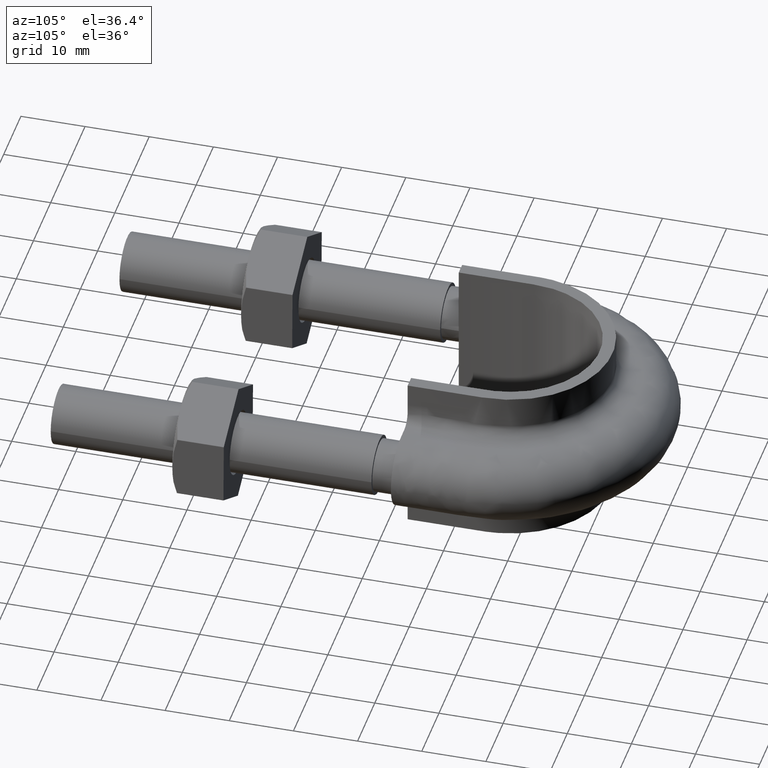
[diagram: clean part render]
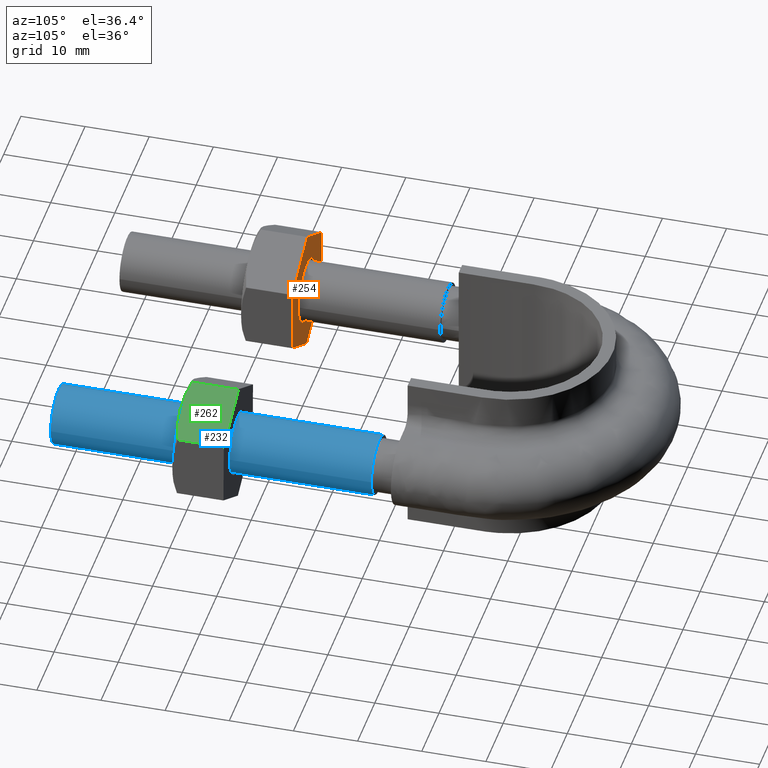
[diagram: same view with three faces highlighted in distinct colors, each labeled with its STEP entity id]
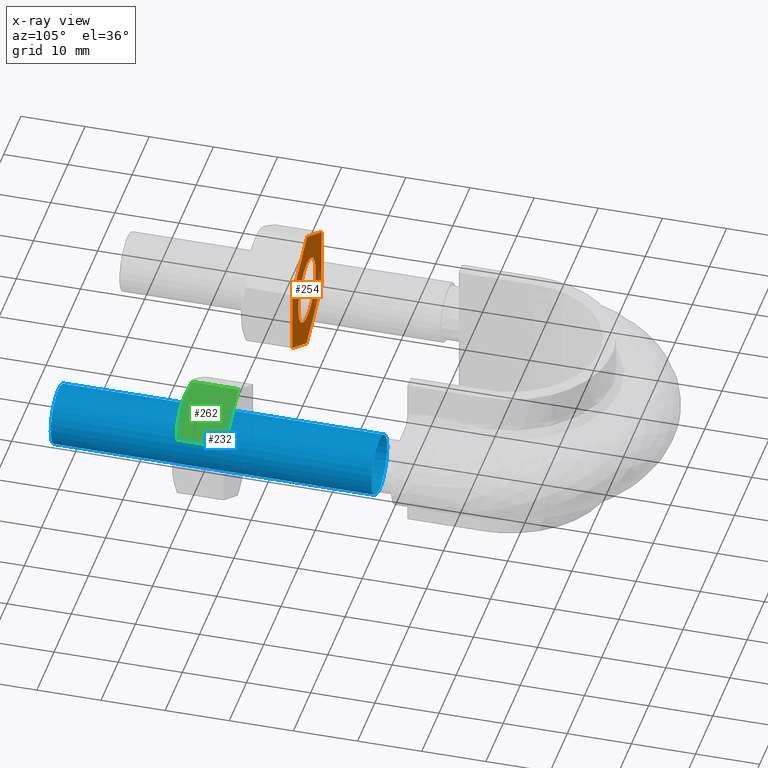
[diagram: x-ray of the same camera — body ghosted, the three highlighted faces saturated]
A machine part, auxiliary view with three faces highlighted in distinct colors.
The next image is the same camera in x-ray (body ghosted, the three faces saturated) — at least one of them is partly hidden behind the body in this view.
Their STEP definitions:

[orange] entity #254 — the highlighted planar face has unit normal (-0, -1, -0).
#254 = ADVANCED_FACE( '', ( #360, #361 ), #362, .F. );
#360 = FACE_OUTER_BOUND( '', #1218, .T. );
#361 = FACE_BOUND( '', #1219, .T. );
#362 = PLANE( '', #1220 );
#1218 = EDGE_LOOP( '', ( #1531, #1532, #1533, #1534, #1535, #1536, #1537, #1538, #1539, #1540, #1541, #1542 ) );
#1219 = EDGE_LOOP( '', ( #1543 ) );
#1220 = AXIS2_PLACEMENT_3D( '', #1544, #1545, #1546 );
#1531 = ORIENTED_EDGE( '', *, *, #1794, .T. );
#1532 = ORIENTED_EDGE( '', *, *, #1787, .T. );
#1533 = ORIENTED_EDGE( '', *, *, #1781, .T. );
#1534 = ORIENTED_EDGE( '', *, *, #1761, .T. );
#1535 = ORIENTED_EDGE( '', *, *, #1804, .T. );
#1536 = ORIENTED_EDGE( '', *, *, #1800, .T. );
#1537 = ORIENTED_EDGE( '', *, *, #1791, .T. );
#1538 = ORIENTED_EDGE( '', *, *, #1796, .T. );
#1539 = ORIENTED_EDGE( '', *, *, #1771, .T. );
#1540 = ORIENTED_EDGE( '', *, *, #1766, .T. );
#1541 = ORIENTED_EDGE( '', *, *, #1785, .T. );
#1542 = ORIENTED_EDGE( '', *, *, #1776, .T. );
#1543 = ORIENTED_EDGE( '', *, *, #1793, .F. );
#1544 = CARTESIAN_POINT( '', ( -20.1994470847724, 28.0000000000024, 9.79797024186009 ) );
#1545 = DIRECTION( '', ( -4.89842541528951E-016, -1.00000000000000, -6.12303176911189E-017 ) );
#1546 = DIRECTION( '', ( -1.00000000000000, 4.89842541528951E-016, 6.03777548009827E-048 ) );
#1761 = EDGE_CURVE( '', #1907, #1905, #1908, .T. );
#1766 = EDGE_CURVE( '', #1917, #1915, #1918, .T. );
#1771 = EDGE_CURVE( '', #1925, #1917, #1926, .F. );
#1776 = EDGE_CURVE( '', #1935, #1933, #1936, .T. );
#1781 = EDGE_CURVE( '', #1942, #1907, #1943, .F. );
#1785 = EDGE_CURVE( '', #1915, #1935, #1949, .F. );
#1787 = EDGE_CURVE( '', #1951, #1942, #1952, .T. );
#1791 = EDGE_CURVE( '', #1959, #1957, #1960, .F. );
#1793 = EDGE_CURVE( '', #1962, #1962, #1963, .F. );
#1794 = EDGE_CURVE( '', #1933, #1951, #1964, .F. );
#1796 = EDGE_CURVE( '', #1957, #1925, #1966, .T. );
#1800 = EDGE_CURVE( '', #1972, #1959, #1973, .T. );
#1804 = EDGE_CURVE( '', #1905, #1972, #1977, .F. );
#1905 = VERTEX_POINT( '', #2298 );
#1907 = VERTEX_POINT( '', #2301 );
#1908 = LINE( '', #2302, #2303 );
#1915 = VERTEX_POINT( '', #2321 );
#1917 = VERTEX_POINT( '', #2324 );
#1918 = LINE( '', #2325, #2326 );
#1925 = VERTEX_POINT( '', #2339 );
#1926 = CIRCLE( '', #2340, 9.80000000000000 );
#1933 = VERTEX_POINT( '', #2358 );
#1935 = VERTEX_POINT( '', #2361 );
#1936 = LINE( '', #2362, #2363 );
#1942 = VERTEX_POINT( '', #2375 );
#1943 = CIRCLE( '', #2376, 9.80000000000000 );
#1949 = CIRCLE( '', #2383, 9.80000000000000 );
#1951 = VERTEX_POINT( '', #2385 );
#1952 = LINE( '', #2386, #2387 );
#1957 = VERTEX_POINT( '', #2393 );
#1959 = VERTEX_POINT( '', #2396 );
#1960 = CIRCLE( '', #2397, 9.80000000000000 );
#1962 = VERTEX_POINT( '', #2400 );
#1963 = CIRCLE( '', #2401, 5.00000000000000 );
#1964 = CIRCLE( '', #2402, 9.80000000000000 );
#1966 = LINE( '', #2409, #2410 );
#1972 = VERTEX_POINT( '', #2426 );
#1973 = LINE( '', #2427, #2428 );
#1977 = CIRCLE( '', #2433, 9.80000000000000 );
#2298 = CARTESIAN_POINT( '', ( -19.7745973443148, 28.0000000000024, -9.79740749600679 ) );
#2301 = CARTESIAN_POINT( '', ( -11.4275360054900, 28.0000000000024, -4.74898526664692 ) );
#2302 = CARTESIAN_POINT( '', ( -11.4082828786081, 28.0000000000024, -4.73734069980000 ) );
#2303 = VECTOR( '', #2626, 1000.00000000000 );
#2321 = CARTESIAN_POINT( '', ( -20.2254026556852, 28.0000000000024, 9.79740749600680 ) );
#2324 = CARTESIAN_POINT( '', ( -28.5724639945100, 28.0000000000024, 4.74898526664693 ) );
#2325 = CARTESIAN_POINT( '', ( -20.2061495288033, 28.0000000000024, 9.80905206285371 ) );
#2326 = VECTOR( '', #2629, 1000.00000000000 );
#2339 = CARTESIAN_POINT( '', ( -28.5975051106125, 28.0000000000024, 4.70349932209962 ) );
#2340 = AXIS2_PLACEMENT_3D( '', #2637, #2638, #2639 );
#2358 = CARTESIAN_POINT( '', ( -11.6278975450726, 28.0000000000024, 5.09390817390726 ) );
#2361 = CARTESIAN_POINT( '', ( -20.1734901141408, 28.0000000000024, 9.79846422559656 ) );
#2362 = CARTESIAN_POINT( '', ( -20.1932011682872, 28.0000000000024, 9.80931563915510 ) );
#2363 = VECTOR( '', #2642, 1000.00000000000 );
#2375 = CARTESIAN_POINT( '', ( -11.4024948893875, 28.0000000000024, -4.70349932209962 ) );
#2376 = AXIS2_PLACEMENT_3D( '', #2650, #2651, #2652 );
#2383 = AXIS2_PLACEMENT_3D( '', #2660, #2661, #2662 );
#2385 = CARTESIAN_POINT( '', ( -11.6010261196308, 28.0000000000024, 5.04947895894972 ) );
#2386 = CARTESIAN_POINT( '', ( -11.7012075892815, 28.0000000000024, 9.97096006028513 ) );
#2387 = VECTOR( '', #2666, 1000.00000000000 );
#2393 = CARTESIAN_POINT( '', ( -28.3989738803692, 28.0000000000024, -5.04947895894971 ) );
#2396 = CARTESIAN_POINT( '', ( -28.3721024549274, 28.0000000000024, -5.09390817390725 ) );
#2397 = AXIS2_PLACEMENT_3D( '', #2672, #2673, #2674 );
#2400 = CARTESIAN_POINT( '', ( -15.0000000000000, 28.0000000000024, 5.01541082970070E-015 ) );
#2401 = AXIS2_PLACEMENT_3D( '', #2676, #2677, #2678 );
#2402 = AXIS2_PLACEMENT_3D( '', #2679, #2680, #2681 );
#2409 = CARTESIAN_POINT( '', ( -28.6976865802633, 28.0000000000024, 9.62498042343504 ) );
#2410 = VECTOR( '', #2682, 1000.00000000000 );
#2426 = CARTESIAN_POINT( '', ( -19.8265098858592, 28.0000000000024, -9.79846422559655 ) );
#2427 = CARTESIAN_POINT( '', ( -28.3918135090738, 28.0000000000024, -5.08305676034871 ) );
#2428 = VECTOR( '', #2686, 1000.00000000000 );
#2433 = AXIS2_PLACEMENT_3D( '', #2694, #2695, #2696 );
#2626 = DIRECTION( '', ( -0.855670162509040, 4.50831657113657E-016, -0.517521567658540 ) );
#2629 = DIRECTION( '', ( 0.855670162509040, -4.50831657113657E-016, 0.517521567658540 ) );
#2637 = CARTESIAN_POINT( '', ( -20.0000000000000, 28.0000000000024, 5.01541082970070E-015 ) );
#2638 = DIRECTION( '', ( -4.89842541528951E-016, -1.00000000000000, -6.12303176911189E-017 ) );
#2639 = DIRECTION( '', ( 1.00000000000000, -4.89842541528951E-016, 0.000000000000000 ) );
#2642 = DIRECTION( '', ( 0.876021905853163, -3.99583171018579E-016, -0.482271314163917 ) );
#2650 = CARTESIAN_POINT( '', ( -20.0000000000000, 28.0000000000024, 5.01541082970070E-015 ) );
#2651 = DIRECTION( '', ( -4.89842541528951E-016, -1.00000000000000, -6.12303176911189E-017 ) );
#2652 = DIRECTION( '', ( 1.00000000000000, -4.89842541528951E-016, 0.000000000000000 ) );
#2660 = CARTESIAN_POINT( '', ( -20.0000000000000, 28.0000000000024, 5.01541082970070E-015 ) );
#2661 = DIRECTION( '', ( -4.89842541528951E-016, -1.00000000000000, -6.12303176911189E-017 ) );
#2662 = DIRECTION( '', ( 1.00000000000000, -4.89842541528951E-016, 0.000000000000000 ) );
#2666 = DIRECTION( '', ( 0.0203517433441231, 5.12484860950782E-017, -0.999792881822458 ) );
#2672 = CARTESIAN_POINT( '', ( -20.0000000000000, 28.0000000000024, 5.01541082970070E-015 ) );
#2673 = DIRECTION( '', ( -4.89842541528951E-016, -1.00000000000000, -6.12303176911189E-017 ) );
#2674 = DIRECTION( '', ( 1.00000000000000, -4.89842541528951E-016, 0.000000000000000 ) );
#2676 = CARTESIAN_POINT( '', ( -20.0000000000000, 28.0000000000024, 5.01541082970070E-015 ) );
#2677 = DIRECTION( '', ( -4.89842541528951E-016, -1.00000000000000, -6.12303176911189E-017 ) );
#2678 = DIRECTION( '', ( 1.00000000000000, -4.89842541528951E-016, 0.000000000000000 ) );
#2679 = CARTESIAN_POINT( '', ( -20.0000000000000, 28.0000000000024, 5.01541082970070E-015 ) );
#2680 = DIRECTION( '', ( -4.89842541528951E-016, -1.00000000000000, -6.12303176911189E-017 ) );
#2681 = DIRECTION( '', ( 1.00000000000000, -4.89842541528951E-016, 0.000000000000000 ) );
#2682 = DIRECTION( '', ( -0.0203517433441231, -5.12484860950782E-017, 0.999792881822458 ) );
#2686 = DIRECTION( '', ( -0.876021905853163, 3.99583171018579E-016, 0.482271314163917 ) );
#2694 = CARTESIAN_POINT( '', ( -20.0000000000000, 28.0000000000024, 5.01541082970070E-015 ) );
#2695 = DIRECTION( '', ( -4.89842541528951E-016, -1.00000000000000, -6.12303176911189E-017 ) );
#2696 = DIRECTION( '', ( 1.00000000000000, -4.89842541528951E-016, 0.000000000000000 ) );

[blue] entity #232 — the highlighted cylindrical surface (bore or boss wall) has radius 4.6 mm, axis along (0, 1, 0).
#232 = ADVANCED_FACE( '', ( #312, #313 ), #314, .T. );
#312 = FACE_OUTER_BOUND( '', #1170, .T. );
#313 = FACE_OUTER_BOUND( '', #1171, .T. );
#314 = CYLINDRICAL_SURFACE( '', #1172, 4.60000000000000 );
#1170 = EDGE_LOOP( '', ( #1379 ) );
#1171 = EDGE_LOOP( '', ( #1380 ) );
#1172 = AXIS2_PLACEMENT_3D( '', #1381, #1382, #1383 );
#1379 = ORIENTED_EDGE( '', *, *, #1752, .T. );
#1380 = ORIENTED_EDGE( '', *, *, #1749, .F. );
#1381 = CARTESIAN_POINT( '', ( 20.0000000000000, 50.0000000000000, 3.06151588455594E-015 ) );
#1382 = DIRECTION( '', ( 4.89842541528951E-016, 1.00000000000000, 6.12303176911189E-017 ) );
#1383 = DIRECTION( '', ( 1.00000000000000, -4.89842541528951E-016, -2.24949108273321E-032 ) );
#1749 = EDGE_CURVE( '', #1883, #1883, #1884, .T. );
#1752 = EDGE_CURVE( '', #1889, #1889, #1890, .T. );
#1883 = VERTEX_POINT( '', #2243 );
#1884 = CIRCLE( '', #2244, 4.60000000000000 );
#1889 = VERTEX_POINT( '', #2267 );
#1890 = CIRCLE( '', #2268, 4.60000000000000 );
#2243 = CARTESIAN_POINT( '', ( 24.6000000000000, -1.20501265216122E-014, -5.53374806352369E-031 ) );
#2244 = AXIS2_PLACEMENT_3D( '', #2607, #2608, #2609 );
#2267 = CARTESIAN_POINT( '', ( 24.6000000000000, 50.0000000000000, 3.06151588455594E-015 ) );
#2268 = AXIS2_PLACEMENT_3D( '', #2610, #2611, #2612 );
#2607 = CARTESIAN_POINT( '', ( 20.0000000000000, -9.79685083057902E-015, -4.49898216546641E-031 ) );
#2608 = DIRECTION( '', ( -4.89842541528951E-016, -1.00000000000000, -6.12303176911189E-017 ) );
#2609 = DIRECTION( '', ( 1.00000000000000, -4.89842541528951E-016, -2.24949108273321E-032 ) );
#2610 = CARTESIAN_POINT( '', ( 20.0000000000000, 50.0000000000000, 3.06151588455594E-015 ) );
#2611 = DIRECTION( '', ( -4.89842541528951E-016, -1.00000000000000, -6.12303176911189E-017 ) );
#2612 = DIRECTION( '', ( 1.00000000000000, -4.89842541528951E-016, -2.24949108273321E-032 ) );

[green] entity #262 — the highlighted planar face has unit normal (-0.4823, 0, -0.876).
#262 = ADVANCED_FACE( '', ( #379 ), #380, .F. );
#379 = FACE_OUTER_BOUND( '', #1237, .T. );
#380 = PLANE( '', #1238 );
#1237 = EDGE_LOOP( '', ( #1598, #1599, #1600, #1601, #1602 ) );
#1238 = AXIS2_PLACEMENT_3D( '', #1603, #1604, #1605 );
#1598 = ORIENTED_EDGE( '', *, *, #1825, .F. );
#1599 = ORIENTED_EDGE( '', *, *, #1826, .F. );
#1600 = ORIENTED_EDGE( '', *, *, #1827, .F. );
#1601 = ORIENTED_EDGE( '', *, *, #1828, .F. );
#1602 = ORIENTED_EDGE( '', *, *, #1824, .F. );
#1603 = CARTESIAN_POINT( '', ( 19.8002485635305, 28.0000000000024, 9.81292172071916 ) );
#1604 = DIRECTION( '', ( -0.482271314163917, 2.89876105836329E-016, -0.876021905853163 ) );
#1605 = DIRECTION( '', ( -0.876021905853163, 1.60913563494086E-032, 0.482271314163917 ) );
#1824 = EDGE_CURVE( '', #2012, #2008, #2014, .T. );
#1825 = EDGE_CURVE( '', #2015, #2012, #2016, .T. );
#1826 = EDGE_CURVE( '', #2017, #2015, #2018, .T. );
#1827 = EDGE_CURVE( '', #2019, #2017, #2020, .F. );
#1828 = EDGE_CURVE( '', #2008, #2019, #2021, .T. );
#2008 = VERTEX_POINT( '', #2493 );
#2012 = VERTEX_POINT( '', #2498 );
#2014 = LINE( '', #2500, #2501 );
#2015 = VERTEX_POINT( '', #2502 );
#2016 = B_SPLINE_CURVE_WITH_KNOTS( '', 3, ( #2503, #2504, #2505, #2506, #2507, #2508 ), .UNSPECIFIED., .F., .F., ( 4, 2, 4 ), ( 4.33680868994202E-018, 0.00246745482903605, 0.00493490965807209 ), .UNSPECIFIED. );
#2017 = VERTEX_POINT( '', #2509 );
#2018 = B_SPLINE_CURVE_WITH_KNOTS( '', 3, ( #2510, #2511, #2512, #2513, #2514, #2515 ), .UNSPECIFIED., .F., .F., ( 4, 2, 4 ), ( 2.81859202805183E-017, 0.00246745482903606, 0.00493490965807209 ), .UNSPECIFIED. );
#2019 = VERTEX_POINT( '', #2516 );
#2020 = LINE( '', #2517, #2518 );
#2021 = LINE( '', #2519, #2520 );
#2493 = CARTESIAN_POINT( '', ( 19.8265098858592, 28.0000000000024, 9.79846422559656 ) );
#2498 = CARTESIAN_POINT( '', ( 19.8265098858592, 20.7505553499489, 9.79846422559657 ) );
#2500 = CARTESIAN_POINT( '', ( 19.8265098858592, 28.0000000000024, 9.79846422559656 ) );
#2501 = VECTOR( '', #2729, 1000.00000000000 );
#2502 = CARTESIAN_POINT( '', ( 24.0993061703933, 20.0000000000024, 7.44618619975190 ) );
#2503 = CARTESIAN_POINT( '', ( 24.0993061703933, 20.0000000000024, 7.44618619975191 ) );
#2504 = CARTESIAN_POINT( '', ( 23.3703105687211, 20.0000000000024, 7.84751596615285 ) );
#2505 = CARTESIAN_POINT( '', ( 22.6509736803368, 20.0716504305314, 8.24352837653869 ) );
#2506 = CARTESIAN_POINT( '', ( 21.2281941533237, 20.3328582843731, 9.02680302717639 ) );
#2507 = CARTESIAN_POINT( '', ( 20.5246359669394, 20.5215585493681, 9.41412887927125 ) );
#2508 = CARTESIAN_POINT( '', ( 19.8265098858592, 20.7505553499489, 9.79846422559657 ) );
#2509 = CARTESIAN_POINT( '', ( 28.3721024549274, 20.7505553499489, 5.09390817390726 ) );
#2510 = CARTESIAN_POINT( '', ( 28.3721024549274, 20.7505553499489, 5.09390817390725 ) );
#2511 = CARTESIAN_POINT( '', ( 27.6739763738472, 20.5215585493681, 5.47824352023258 ) );
#2512 = CARTESIAN_POINT( '', ( 26.9704181874629, 20.3328582843731, 5.86556937232744 ) );
#2513 = CARTESIAN_POINT( '', ( 25.5476386604498, 20.0716504305314, 6.64884402296514 ) );
#2514 = CARTESIAN_POINT( '', ( 24.8283017720655, 20.0000000000024, 7.04485643335097 ) );
#2515 = CARTESIAN_POINT( '', ( 24.0993061703933, 20.0000000000024, 7.44618619975191 ) );
#2516 = CARTESIAN_POINT( '', ( 28.3721024549274, 28.0000000000024, 5.09390817390726 ) );
#2517 = CARTESIAN_POINT( '', ( 28.3721024549274, 28.0000000000024, 5.09390817390726 ) );
#2518 = VECTOR( '', #2730, 1000.00000000000 );
#2519 = CARTESIAN_POINT( '', ( 19.8067988317128, 28.0000000000024, 9.80931563915510 ) );
#2520 = VECTOR( '', #2731, 1000.00000000000 );
#2729 = DIRECTION( '', ( 4.89842541528950E-016, 1.00000000000000, 6.12303176911188E-017 ) );
#2730 = DIRECTION( '', ( 4.89842541528950E-016, 1.00000000000000, 6.12303176911188E-017 ) );
#2731 = DIRECTION( '', ( 0.876021905853163, -3.99583171018579E-016, -0.482271314163917 ) );